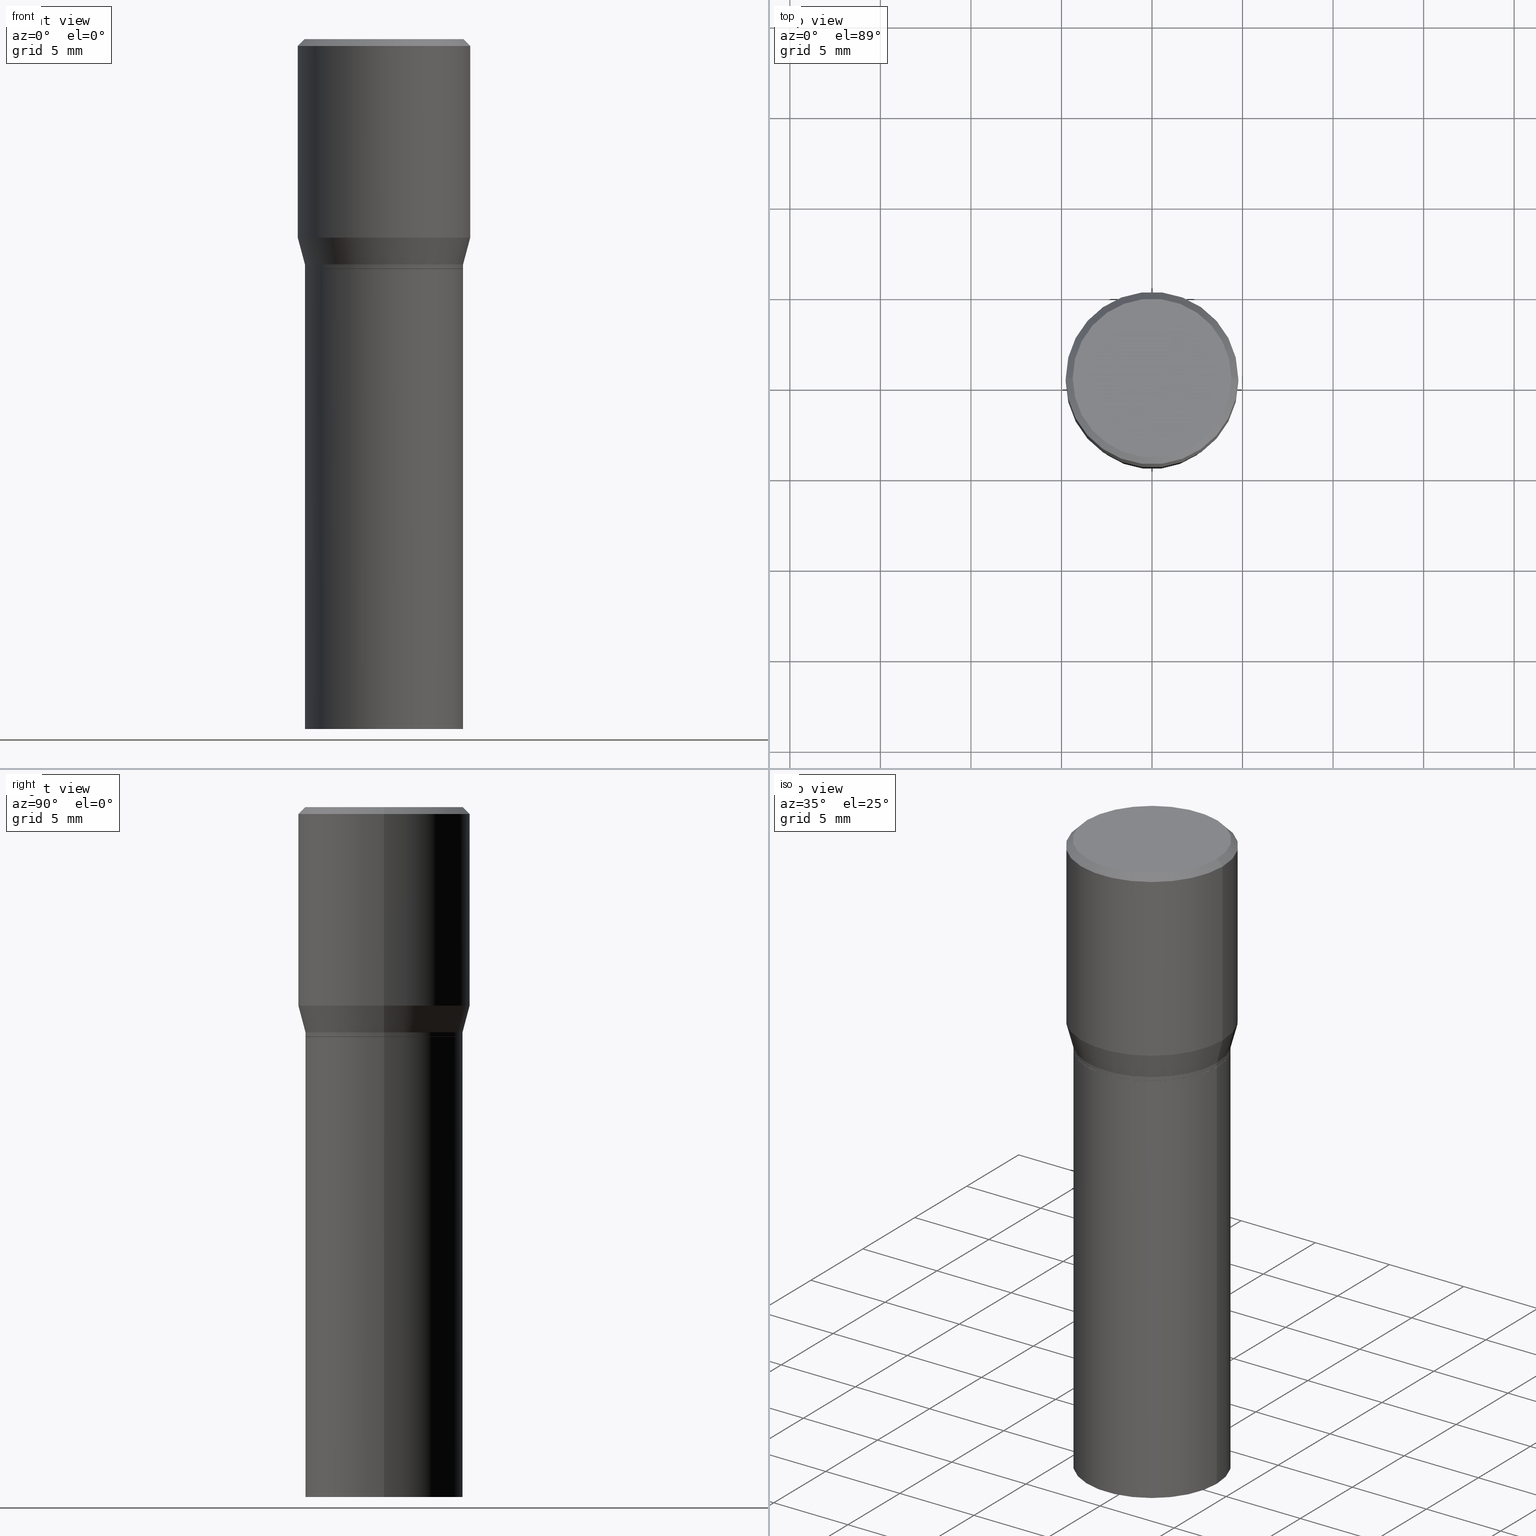
[diagram: canonical four-view strip — front | top / right | iso, engineering-drawing reading convention]
A machine part, canonical four-view strip (front | top / right | iso — engineering-drawing reading convention). The complete STEP part file that produces these views, byte-faithful:
ISO-10303-21;
HEADER;
FILE_DESCRIPTION (( 'STEP AP203' ),
    '1' );
FILE_NAME ('39743.STEP',
    '2024-03-12T19:06:54',
    ( '' ),
    ( '' ),
    'SwSTEP 2.0',
    'SolidWorks 2023',
    '' );
FILE_SCHEMA (( 'CONFIG_CONTROL_DESIGN' ));
ENDSEC;

DATA;
#1 = DIRECTION ( 'NONE',  ( 1.000000000000000000, -6.982962677686265922E-15, 0.000000000000000000 ) ) ;
#2 = ORIENTED_EDGE ( 'NONE', *, *, #230, .F. ) ;
#3 = EDGE_CURVE ( 'NONE', #219, #31, #153, .T. ) ;
#4 = PERSON_AND_ORGANIZATION ( #386, #197 ) ;
#5 = CARTESIAN_POINT ( 'NONE',  ( 1.222734403092568719E-29, -1.745740669421573186E-15, -0.5000000000000001110 ) ) ;
#6 = VECTOR ( 'NONE', #260, 39.37007874015748854 ) ;
#7 = DIRECTION ( 'NONE',  ( -2.445468806185136877E-29, 3.491481338843145188E-15, 1.000000000000000000 ) ) ;
#8 = DIRECTION ( 'NONE',  ( 1.000000000000000000, -6.982962677686266711E-15, 4.876176775795936353E-29 ) ) ;
#9 = ORIENTED_EDGE ( 'NONE', *, *, #288, .F. ) ;
#10 = EDGE_CURVE ( 'NONE', #149, #279, #114, .T. ) ;
#11 = LINE ( 'NONE', #328, #79 ) ;
#12 = ORIENTED_EDGE ( 'NONE', *, *, #303, .F. ) ;
#13 = PRODUCT_RELATED_PRODUCT_CATEGORY ( 'detail', '', ( #168 ) ) ;
#14 = AXIS2_PLACEMENT_3D ( 'NONE', #132, #463, #207 ) ;
#15 = DATE_AND_TIME ( #292, #127 ) ;
#16 = ORIENTED_EDGE ( 'NONE', *, *, #374, .F. ) ;
#17 = DIRECTION ( 'NONE',  ( 1.000000000000000000, -6.982962677686266711E-15, 0.000000000000000000 ) ) ;
#18 = CALENDAR_DATE ( 2024, 12, 3 ) ;
#19 = DIRECTION ( 'NONE',  ( -2.445468806185136877E-29, 3.491481338843145188E-15, 1.000000000000000000 ) ) ;
#20 = CALENDAR_DATE ( 2024, 12, 3 ) ;
#21 = VECTOR ( 'NONE', #302, 39.37007874015748143 ) ;
#22 = CARTESIAN_POINT ( 'NONE',  ( 0.000000000000000000, 0.000000000000000000, 0.000000000000000000 ) ) ;
#23 = LINE ( 'NONE', #340, #266 ) ;
#24 = MANIFOLD_SOLID_BREP ( 'Body-Move/Copy2[1]', #370 ) ;
#25 = CYLINDRICAL_SURFACE ( 'NONE', #136, 0.1718999999999999695 ) ;
#26 = CARTESIAN_POINT ( 'NONE',  ( 0.1875000000000000278, -1.309305502066175008E-15, 9.142831454617381013E-30 ) ) ;
#27 = CC_DESIGN_APPROVAL ( #91, ( #336 ) ) ;
#28 = EDGE_LOOP ( 'NONE', ( #97, #205, #448, #242 ) ) ;
#29 = ADVANCED_FACE ( 'NONE', ( #156 ), #195, .T. ) ;
#30 = DIRECTION ( 'NONE',  ( 1.000000000000000000, -6.982962677686266711E-15, 4.876912640186324808E-29 ) ) ;
#31 = VERTEX_POINT ( 'NONE', #187 ) ;
#32 = CC_DESIGN_PERSON_AND_ORGANIZATION_ASSIGNMENT ( #325, #289, ( #63 ) ) ;
#33 = CARTESIAN_POINT ( 'NONE',  ( 1.221511668689476057E-29, -1.743994928752151682E-15, -0.4995000000000001661 ) ) ;
#34 = ORIENTED_EDGE ( 'NONE', *, *, #277, .T. ) ;
#35 = DIRECTION ( 'NONE',  ( 1.000000000000000000, -6.982962677686265922E-15, 0.000000000000000000 ) ) ;
#36 = EDGE_LOOP ( 'NONE', ( #465, #358, #276, #402 ) ) ;
#37 = EDGE_CURVE ( 'NONE', #352, #407, #404, .T. ) ;
#38 = AXIS2_PLACEMENT_3D ( 'NONE', #232, #459, #351 ) ;
#39 = CARTESIAN_POINT ( 'NONE',  ( 0.1875000000000000278, -2.816857340395553661E-15, -0.4317800074019257361 ) ) ;
#40 = ORIENTED_EDGE ( 'NONE', *, *, #322, .F. ) ;
#41 = DIRECTION ( 'NONE',  ( 0.000000000000000000, 0.000000000000000000, 1.000000000000000000 ) ) ;
#42 = DIRECTION ( 'NONE',  ( 2.438088387897960049E-29, -3.491481338843145188E-15, -1.000000000000000000 ) ) ;
#43 = CYLINDRICAL_SURFACE ( 'NONE', #389, 0.1718999999999999695 ) ;
#44 =( NAMED_UNIT ( * ) PLANE_ANGLE_UNIT ( ) SI_UNIT ( $, .RADIAN. ) );
#45 = CARTESIAN_POINT ( 'NONE',  ( 1.222734403092568719E-29, -1.745740669421573186E-15, -0.5000000000000001110 ) ) ;
#46 = FACE_OUTER_BOUND ( 'NONE', #100, .T. ) ;
#47 = EDGE_LOOP ( 'NONE', ( #181, #433 ) ) ;
#48 = CALENDAR_DATE ( 2024, 12, 3 ) ;
#49 = ORIENTED_EDGE ( 'NONE', *, *, #37, .F. ) ;
#50 = AXIS2_PLACEMENT_3D ( 'NONE', #373, #198, #17 ) ;
#51 = DIRECTION ( 'NONE',  ( 2.445468806185136597E-29, -3.491481338843145583E-15, -1.000000000000000000 ) ) ;
#52 = ADVANCED_FACE ( 'NONE', ( #296 ), #410, .F. ) ;
#53 = DIRECTION ( 'NONE',  ( -2.438088387897960049E-29, 3.491481338843145188E-15, 1.000000000000000000 ) ) ;
#54 = DIRECTION ( 'NONE',  ( -2.445468806185136597E-29, 3.491481338843145583E-15, 1.000000000000000000 ) ) ;
#55 = AXIS2_PLACEMENT_3D ( 'NONE', #390, #60, #30 ) ;
#56 = CC_DESIGN_SECURITY_CLASSIFICATION ( #336, ( #72 ) ) ;
#57 = CARTESIAN_POINT ( 'NONE',  ( 0.1725000000000000144, -1.261075749640199308E-15, -2.636744989014362231E-17 ) ) ;
#58 = ADVANCED_FACE ( 'NONE', ( #364 ), #436, .T. ) ;
#59 = LINE ( 'NONE', #416, #6 ) ;
#60 = DIRECTION ( 'NONE',  ( -2.445468806185136597E-29, 3.491481338843145583E-15, 1.000000000000000000 ) ) ;
#61 = DIRECTION ( 'NONE',  ( -2.445468806185136597E-29, 3.491481338843145583E-15, 1.000000000000000000 ) ) ;
#62 = ORIENTED_EDGE ( 'NONE', *, *, #438, .T. ) ;
#63 = PRODUCT_DEFINITION ( 'UNKNOWN', '', #72, #82 ) ;
#64 = CARTESIAN_POINT ( 'NONE',  ( 1.055904539235796751E-29, -1.507551838329378850E-15, -0.4317800074019257361 ) ) ;
#65 = ORIENTED_EDGE ( 'NONE', *, *, #217, .T. ) ;
#66 = EDGE_CURVE ( 'NONE', #149, #442, #165, .T. ) ;
#67 = DIRECTION ( 'NONE',  ( 1.000000000000000000, -6.982962677686268288E-15, 0.000000000000000000 ) ) ;
#68 = ORIENTED_EDGE ( 'NONE', *, *, #366, .F. ) ;
#69 = PLANE ( 'NONE',  #335 ) ;
#70 = VECTOR ( 'NONE', #19, 39.37007874015748143 ) ;
#71 = VERTEX_POINT ( 'NONE', #250 ) ;
#72 = PRODUCT_DEFINITION_FORMATION_WITH_SPECIFIED_SOURCE ( 'ANY', '', #168, .NOT_KNOWN. ) ;
#73 =( LENGTH_UNIT ( ) NAMED_UNIT ( * ) SI_UNIT ( $, .METRE. ) );
#74 = ORIENTED_EDGE ( 'NONE', *, *, #464, .F. ) ;
#75 = CARTESIAN_POINT ( 'NONE',  ( 0.1713999999999999690, -2.942620472376999223E-15, -0.5000000000000001110 ) ) ;
#76 = CARTESIAN_POINT ( 'NONE',  ( 1.198279715030717173E-29, -1.710825856033141537E-15, -0.4900000000000001021 ) ) ;
#77 = CARTESIAN_POINT ( 'NONE',  ( 0.000000000000000000, 0.000000000000000000, 0.000000000000000000 ) ) ;
#78 = EDGE_LOOP ( 'NONE', ( #444, #331, #367, #9 ) ) ;
#79 = VECTOR ( 'NONE', #245, 39.37007874015748143 ) ;
#80 = DIRECTION ( 'NONE',  ( -1.000000000000000000, 6.982962677686265922E-15, 0.000000000000000000 ) ) ;
#81 = ORIENTED_EDGE ( 'NONE', *, *, #400, .F. ) ;
#82 = DESIGN_CONTEXT ( 'detailed design', #383, 'design' ) ;
#83 = CALENDAR_DATE ( 2024, 12, 3 ) ;
#84 = CARTESIAN_POINT ( 'NONE',  ( 1.055904539235796751E-29, -1.507551838329378850E-15, -0.4317800074019257361 ) ) ;
#85 = ADVANCED_FACE ( 'NONE', ( #361 ), #43, .T. ) ;
#86 = DIRECTION ( 'NONE',  ( 1.000000000000000000, -6.982962677686265922E-15, 4.876176775795935793E-29 ) ) ;
#87 = CIRCLE ( 'NONE', #145, 0.1718999999999999695 ) ;
#88 = DIRECTION ( 'NONE',  ( -2.438088387897960049E-29, 3.491481338843145188E-15, 1.000000000000000000 ) ) ;
#89 = CARTESIAN_POINT ( 'NONE',  ( 0.000000000000000000, 0.000000000000000000, 0.000000000000000000 ) ) ;
#90 = DIRECTION ( 'NONE',  ( 1.000000000000000000, -6.982962677686265922E-15, 4.876176775795935793E-29 ) ) ;
#91 = APPROVAL ( #222, 'UNSPECIFIED' ) ;
#92 = DATE_AND_TIME ( #20, #397 ) ;
#93 = AXIS2_PLACEMENT_3D ( 'NONE', #349, #392, #432 ) ;
#94 = CARTESIAN_POINT ( 'NONE',  ( 0.1718999999999999695, -2.946111953715842230E-15, -0.5000000000000001110 ) ) ;
#95 = DIRECTION ( 'NONE',  ( -2.445468806185136597E-29, 3.491481338843145583E-15, 1.000000000000000000 ) ) ;
#96 = DIRECTION ( 'NONE',  ( 1.000000000000000000, -6.982962677686268288E-15, 0.000000000000000000 ) ) ;
#97 = ORIENTED_EDGE ( 'NONE', *, *, #429, .F. ) ;
#98 = CARTESIAN_POINT ( 'NONE',  ( 1.200371284294281074E-15, 0.1718999999999982486, -0.5000000000000007772 ) ) ;
#99 = CONICAL_SURFACE ( 'NONE', #118, 0.1875000000000000278, 0.7853981633974495002 ) ;
#100 = EDGE_LOOP ( 'NONE', ( #314, #270, #34, #431 ) ) ;
#101 = DIRECTION ( 'NONE',  ( 1.000000000000000000, -6.982962677686266711E-15, 0.000000000000000000 ) ) ;
#102 = ORIENTED_EDGE ( 'NONE', *, *, #3, .F. ) ;
#103 = FACE_OUTER_BOUND ( 'NONE', #460, .T. ) ;
#104 = PERSON_AND_ORGANIZATION_ROLE ( 'creator' ) ;
#105 = CIRCLE ( 'NONE', #274, 0.1725000000000000144 ) ;
#106 = APPROVAL_PERSON_ORGANIZATION ( #446, #291, #257 ) ;
#107 = DIRECTION ( 'NONE',  ( -2.445468806185136597E-29, 3.491481338843145583E-15, 1.000000000000000000 ) ) ;
#108 = CARTESIAN_POINT ( 'NONE',  ( -0.1718999999999999695, -2.270058376071533777E-15, -0.5000000000000001110 ) ) ;
#109 = CC_DESIGN_PERSON_AND_ORGANIZATION_ASSIGNMENT ( #4, #406, ( #168 ) ) ;
#110 = APPROVAL_DATE_TIME ( #330, #362 ) ;
#111 = EDGE_LOOP ( 'NONE', ( #290, #399, #409, #435 ) ) ;
#112 = CIRCLE ( 'NONE', #55, 0.1725000000000000144 ) ;
#113 = APPROVAL_STATUS ( 'not_yet_approved' ) ;
#114 = LINE ( 'NONE', #294, #332 ) ;
#115 = VERTEX_POINT ( 'NONE', #108 ) ;
#116 = ADVANCED_FACE ( 'NONE', ( #329 ), #128, .T. ) ;
#117 = CARTESIAN_POINT ( 'NONE',  ( 3.576687321579069994E-29, -5.368277968210015545E-15, -1.500000000000000222 ) ) ;
#118 = AXIS2_PLACEMENT_3D ( 'NONE', #420, #51, #268 ) ;
#119 = COORDINATED_UNIVERSAL_TIME_OFFSET ( 5, 0, .BEHIND. ) ;
#120 = DIRECTION ( 'NONE',  ( 1.000000000000000000, -6.982962677686266711E-15, 4.876912640186324808E-29 ) ) ;
#121 = DIRECTION ( 'NONE',  ( -2.445468806185136597E-29, 3.491481338843145583E-15, 1.000000000000000000 ) ) ;
#122 = CC_DESIGN_PERSON_AND_ORGANIZATION_ASSIGNMENT ( #155, #371, ( #336 ) ) ;
#123 = DATE_TIME_ROLE ( 'classification_date' ) ;
#124 = FACE_OUTER_BOUND ( 'NONE', #287, .T. ) ;
#125 = VECTOR ( 'NONE', #357, 39.37007874015748143 ) ;
#126 = ADVANCED_FACE ( 'NONE', ( #261 ), #223, .F. ) ;
#127 = LOCAL_TIME ( 15, 6, 54.00000000000000000, #253 ) ;
#128 = CYLINDRICAL_SURFACE ( 'NONE', #421, 0.1718999999999999695 ) ;
#129 = DIRECTION ( 'NONE',  ( -2.445468806185136597E-29, 3.491481338843145583E-15, 1.000000000000000000 ) ) ;
#130 = VERTEX_POINT ( 'NONE', #382 ) ;
#131 = PRODUCT_DEFINITION_SHAPE ( 'NONE', 'NONE',  #63 ) ;
#132 = CARTESIAN_POINT ( 'NONE',  ( 3.668203209277705088E-31, -5.237222008264718399E-17, -0.01499999999999999944 ) ) ;
#133 = ORIENTED_EDGE ( 'NONE', *, *, #288, .T. ) ;
#134 = CLOSED_SHELL ( 'NONE', ( #206, #58, #458, #212, #29, #348, #297, #173, #52, #152, #252, #85 ) ) ;
#135 = CARTESIAN_POINT ( 'NONE',  ( 3.668203209277705088E-31, -5.237222008264718399E-17, -0.01499999999999999944 ) ) ;
#136 = AXIS2_PLACEMENT_3D ( 'NONE', #89, #265, #226 ) ;
#137 = AXIS2_PLACEMENT_3D ( 'NONE', #77, #41, #180 ) ;
#138 = VERTEX_POINT ( 'NONE', #159 ) ;
#139 = CARTESIAN_POINT ( 'NONE',  ( -0.1718999999999999695, -5.225719659805397780E-16, -0.4995000000000001661 ) ) ;
#140 = ORIENTED_EDGE ( 'NONE', *, *, #217, .F. ) ;
#141 = EDGE_CURVE ( 'NONE', #442, #71, #59, .T. ) ;
#142 = FACE_OUTER_BOUND ( 'NONE', #215, .T. ) ;
#143 = ORIENTED_EDGE ( 'NONE', *, *, #413, .T. ) ;
#144 = PERSON_AND_ORGANIZATION ( #386, #197 ) ;
#145 = AXIS2_PLACEMENT_3D ( 'NONE', #315, #129, #67 ) ;
#146 = DIRECTION ( 'NONE',  ( -2.445468806185136597E-29, 3.491481338843145583E-15, 1.000000000000000000 ) ) ;
#147 = EDGE_CURVE ( 'NONE', #130, #203, #412, .T. ) ;
#148 = CARTESIAN_POINT ( 'NONE',  ( 3.668203209277705088E-31, -5.237222008264718399E-17, -0.01499999999999999944 ) ) ;
#149 = VERTEX_POINT ( 'NONE', #199 ) ;
#150 = APPROVAL_STATUS ( 'not_yet_approved' ) ;
#151 = EDGE_LOOP ( 'NONE', ( #16, #281 ) ) ;
#152 = ADVANCED_FACE ( 'NONE', ( #305 ), #344, .F. ) ;
#153 = LINE ( 'NONE', #188, #419 ) ;
#154 = CONICAL_SURFACE ( 'NONE', #308, 0.1713999999999999690, 0.7853981633974824739 ) ;
#155 = PERSON_AND_ORGANIZATION ( #386, #197 ) ;
#156 = FACE_OUTER_BOUND ( 'NONE', #236, .T. ) ;
#157 = UNCERTAINTY_MEASURE_WITH_UNIT (LENGTH_MEASURE( 1.000000000000000082E-05 ), #443, 'distance_accuracy_value', 'NONE');
#158 = CARTESIAN_POINT ( 'NONE',  ( 0.1718999999999999695, -2.911197140327410581E-15, -0.4900000000000001021 ) ) ;
#159 = CARTESIAN_POINT ( 'NONE',  ( 0.1718999999999999695, -6.437593292558987418E-15, -1.500000000000000222 ) ) ;
#160 = CIRCLE ( 'NONE', #428, 0.1718999999999999695 ) ;
#161 = CC_DESIGN_APPROVAL ( #291, ( #72 ) ) ;
#162 = FACE_OUTER_BOUND ( 'NONE', #395, .T. ) ;
#163 = CARTESIAN_POINT ( 'NONE',  ( 1.222734403092568719E-29, -1.745740669421573186E-15, -0.5000000000000001110 ) ) ;
#164 = CARTESIAN_POINT ( 'NONE',  ( -0.1718999999999999695, -4.894028932615295339E-16, -0.4900000000000001021 ) ) ;
#165 = CIRCLE ( 'NONE', #341, 0.1713999999999999690 ) ;
#166 = VECTOR ( 'NONE', #7, 39.37007874015748143 ) ;
#167 = DIRECTION ( 'NONE',  ( -2.445468806185136597E-29, 3.491481338843145583E-15, 1.000000000000000000 ) ) ;
#168 = PRODUCT ( '39743', '39743', '', ( #365 ) ) ;
#169 = VERTEX_POINT ( 'NONE', #158 ) ;
#170 = CARTESIAN_POINT ( 'NONE',  ( 1.222734403092568719E-29, -1.745740669421573186E-15, -0.5000000000000001110 ) ) ;
#171 = ORIENTED_EDGE ( 'NONE', *, *, #366, .T. ) ;
#172 = CARTESIAN_POINT ( 'NONE',  ( -0.1875000000000000278, 1.332267629550188046E-15, -9.223003294227947991E-30 ) ) ;
#173 = ADVANCED_FACE ( 'NONE', ( #162 ), #99, .T. ) ;
#174 = DIRECTION ( 'NONE',  ( -1.000000000000000000, 6.982962677686265922E-15, -4.876176775795935793E-29 ) ) ;
#175 = CIRCLE ( 'NONE', #363, 0.1718999999999999695 ) ;
#176 = CC_DESIGN_DATE_AND_TIME_ASSIGNMENT ( #450, #123, ( #336 ) ) ;
#177 = ORIENTED_EDGE ( 'NONE', *, *, #295, .T. ) ;
#178 = DIRECTION ( 'NONE',  ( 1.000000000000000000, -6.982962677686266711E-15, 0.000000000000000000 ) ) ;
#179 = EDGE_LOOP ( 'NONE', ( #81, #216 ) ) ;
#180 = DIRECTION ( 'NONE',  ( 1.000000000000000000, 0.000000000000000000, 0.000000000000000000 ) ) ;
#181 = ORIENTED_EDGE ( 'NONE', *, *, #272, .T. ) ;
#182 = APPLICATION_PROTOCOL_DEFINITION ( 'international standard', 'config_control_design', 1994, #383 ) ;
#183 = CIRCLE ( 'NONE', #14, 0.1875000000000000278 ) ;
#184 = CARTESIAN_POINT ( 'NONE',  ( 0.000000000000000000, 0.000000000000000000, 0.000000000000000000 ) ) ;
#185 = APPROVAL_PERSON_ORGANIZATION ( #144, #362, #284 ) ;
#186 = DIRECTION ( 'NONE',  ( 1.000000000000000000, -6.982962677686266711E-15, 0.000000000000000000 ) ) ;
#187 = CARTESIAN_POINT ( 'NONE',  ( 0.1875000000000000278, -1.361677722148822285E-15, -0.01499999999999999944 ) ) ;
#188 = CARTESIAN_POINT ( 'NONE',  ( 0.1875000000000000278, -1.338715594664809642E-15, -0.01499999999999999944 ) ) ;
#189 = AXIS2_PLACEMENT_3D ( 'NONE', #76, #213, #285 ) ;
#190 = AXIS2_PLACEMENT_3D ( 'NONE', #64, #61, #1 ) ;
#191 = DIRECTION ( 'NONE',  ( 1.000000000000000000, -6.982962677686265922E-15, 4.876176775795935793E-29 ) ) ;
#192 = PERSON_AND_ORGANIZATION ( #386, #197 ) ;
#193 = FACE_OUTER_BOUND ( 'NONE', #346, .T. ) ;
#194 = CARTESIAN_POINT ( 'NONE',  ( 0.1718999999999999695, -1.200371284294269044E-15, 8.382147877593213079E-30 ) ) ;
#195 = CONICAL_SURFACE ( 'NONE', #189, 0.1718999999999999695, 0.2617993877991502960 ) ;
#196 = AXIS2_PLACEMENT_3D ( 'NONE', #135, #353, #35 ) ;
#197 = ORGANIZATION ( 'UNSPECIFIED', 'UNSPECIFIED', '' ) ;
#198 = DIRECTION ( 'NONE',  ( -2.445468806185136597E-29, 3.491481338843145583E-15, 1.000000000000000000 ) ) ;
#199 = CARTESIAN_POINT ( 'NONE',  ( -0.1713999999999999690, -5.252211931546505847E-16, -0.5000000000000001110 ) ) ;
#200 = CARTESIAN_POINT ( 'NONE',  ( 0.000000000000000000, 0.000000000000000000, 0.000000000000000000 ) ) ;
#201 = AXIS2_PLACEMENT_3D ( 'NONE', #339, #338, #86 ) ;
#202 = LINE ( 'NONE', #461, #166 ) ;
#203 = VERTEX_POINT ( 'NONE', #378 ) ;
#204 = DIRECTION ( 'NONE',  ( 2.438088387897960049E-29, -3.491481338843145188E-15, -1.000000000000000000 ) ) ;
#205 = ORIENTED_EDGE ( 'NONE', *, *, #417, .T. ) ;
#206 = ADVANCED_FACE ( 'NONE', ( #193 ), #25, .T. ) ;
#207 = DIRECTION ( 'NONE',  ( 1.000000000000000000, -6.982962677686265922E-15, 0.000000000000000000 ) ) ;
#208 = CIRCLE ( 'NONE', #405, 0.1718999999999999695 ) ;
#209 = CYLINDRICAL_SURFACE ( 'NONE', #93, 0.1718999999999999695 ) ;
#210 = VERTEX_POINT ( 'NONE', #94 ) ;
#211 = CARTESIAN_POINT ( 'NONE',  ( 1.204561061900881047E-15, 0.1725000000000000144, -6.154642558955188135E-16 ) ) ;
#212 = ADVANCED_FACE ( 'NONE', ( #124 ), #453, .T. ) ;
#213 = DIRECTION ( 'NONE',  ( -2.445468806185136597E-29, 3.491481338843145583E-15, 1.000000000000000000 ) ) ;
#214 = DIRECTION ( 'NONE',  ( 1.000000000000000000, -6.982962677686265922E-15, 0.000000000000000000 ) ) ;
#215 = EDGE_LOOP ( 'NONE', ( #354, #177, #350, #49 ) ) ;
#216 = ORIENTED_EDGE ( 'NONE', *, *, #417, .F. ) ;
#217 = EDGE_CURVE ( 'NONE', #169, #425, #208, .T. ) ;
#218 = DATE_AND_TIME ( #83, #457 ) ;
#219 = VERTEX_POINT ( 'NONE', #57 ) ;
#220 = CARTESIAN_POINT ( 'NONE',  ( 1.222734403092568719E-29, -1.745740669421573186E-15, -0.5000000000000001110 ) ) ;
#221 = VECTOR ( 'NONE', #343, 39.37007874015748143 ) ;
#222 = APPROVAL_STATUS ( 'not_yet_approved' ) ;
#223 = PLANE ( 'NONE',  #411 ) ;
#224 = SECURITY_CLASSIFICATION_LEVEL ( 'unclassified' ) ;
#225 = DIRECTION ( 'NONE',  ( -2.445468806185136877E-29, 3.491481338843145188E-15, 1.000000000000000000 ) ) ;
#226 = DIRECTION ( 'NONE',  ( 1.000000000000000000, -6.982962677686266711E-15, 4.876176775795936353E-29 ) ) ;
#227 = AXIS2_PLACEMENT_3D ( 'NONE', #466, #95, #101 ) ;
#228 = LOCAL_TIME ( 15, 6, 54.00000000000000000, #401 ) ;
#229 = CARTESIAN_POINT ( 'NONE',  ( 1.198279715030717173E-29, -1.710825856033141537E-15, -0.4900000000000001021 ) ) ;
#230 = EDGE_CURVE ( 'NONE', #71, #169, #23, .T. ) ;
#231 = DIRECTION ( 'NONE',  ( 1.000000000000000000, -6.982962677686265922E-15, 0.000000000000000000 ) ) ;
#232 = CARTESIAN_POINT ( 'NONE',  ( 1.222734403092568719E-29, -1.745740669421573186E-15, -0.5000000000000001110 ) ) ;
#233 = ORIENTED_EDGE ( 'NONE', *, *, #464, .T. ) ;
#234 = AXIS2_PLACEMENT_3D ( 'NONE', #200, #167, #423 ) ;
#235 = CARTESIAN_POINT ( 'NONE',  ( 1.198279715030717173E-29, -1.710825856033141537E-15, -0.4900000000000001021 ) ) ;
#236 = EDGE_LOOP ( 'NONE', ( #65, #388, #40, #447 ) ) ;
#237 = EDGE_CURVE ( 'NONE', #425, #352, #455, .T. ) ;
#238 = DIRECTION ( 'NONE',  ( -2.445468806185136877E-29, 3.491481338843145188E-15, 1.000000000000000000 ) ) ;
#239 = ORIENTED_EDGE ( 'NONE', *, *, #295, .F. ) ;
#240 = EDGE_CURVE ( 'NONE', #138, #210, #451, .T. ) ;
#241 = DIRECTION ( 'NONE',  ( -2.445468806185136597E-29, 3.491481338843145583E-15, 1.000000000000000000 ) ) ;
#242 = ORIENTED_EDGE ( 'NONE', *, *, #413, .F. ) ;
#243 = AXIS2_PLACEMENT_3D ( 'NONE', #211, #42, #323 ) ;
#244 = CIRCLE ( 'NONE', #372, 0.1718999999999999695 ) ;
#245 = DIRECTION ( 'NONE',  ( -2.445468806185136877E-29, 3.491481338843145188E-15, 1.000000000000000000 ) ) ;
#246 = APPROVAL_PERSON_ORGANIZATION ( #192, #91, #299 ) ;
#247 = ORIENTED_EDGE ( 'NONE', *, *, #10, .F. ) ;
#248 = APPLICATION_CONTEXT ( 'configuration controlled 3d designs of mechanical parts and assemblies' ) ;
#249 = DIRECTION ( 'NONE',  ( 2.445468806185136597E-29, -3.491481338843145583E-15, -1.000000000000000000 ) ) ;
#250 = CARTESIAN_POINT ( 'NONE',  ( 0.1718999999999999695, -2.944366213046420332E-15, -0.4995000000000001661 ) ) ;
#251 = DIRECTION ( 'NONE',  ( -2.445468806185136597E-29, 3.491481338843145583E-15, 1.000000000000000000 ) ) ;
#252 = ADVANCED_FACE ( 'NONE', ( #307 ), #154, .T. ) ;
#253 = COORDINATED_UNIVERSAL_TIME_OFFSET ( 5, 0, .BEHIND. ) ;
#254 = AXIS2_PLACEMENT_3D ( 'NONE', #5, #146, #440 ) ;
#255 = ORIENTED_EDGE ( 'NONE', *, *, #66, .T. ) ;
#256 = CONICAL_SURFACE ( 'NONE', #422, 0.1875000000000000278, 0.7853981633974495002 ) ;
#257 = APPROVAL_ROLE ( '' ) ;
#258 = DIRECTION ( 'NONE',  ( -0.7071067811865715536, 7.493145998870439357E-15, 0.7071067811865232589 ) ) ;
#259 = ORIENTED_EDGE ( 'NONE', *, *, #147, .T. ) ;
#260 = DIRECTION ( 'NONE',  ( 0.7071067811865715536, -2.468850131082509496E-15, 0.7071067811865232589 ) ) ;
#261 = FACE_OUTER_BOUND ( 'NONE', #179, .T. ) ;
#262 = EDGE_CURVE ( 'NONE', #210, #115, #324, .T. ) ;
#263 = DIRECTION ( 'NONE',  ( 1.000000000000000000, -6.982962677686266711E-15, 0.000000000000000000 ) ) ;
#264 = SHAPE_DEFINITION_REPRESENTATION ( #131, #403 ) ;
#265 = DIRECTION ( 'NONE',  ( -2.445468806185136597E-29, 3.491481338843145583E-15, 1.000000000000000000 ) ) ;
#266 = VECTOR ( 'NONE', #225, 39.37007874015748143 ) ;
#267 = LOCAL_TIME ( 15, 6, 54.00000000000000000, #119 ) ;
#268 = DIRECTION ( 'NONE',  ( -1.000000000000000000, 6.982962677686265922E-15, 0.000000000000000000 ) ) ;
#269 = DIRECTION ( 'NONE',  ( -2.445468806185136597E-29, 3.491481338843145583E-15, 1.000000000000000000 ) ) ;
#270 = ORIENTED_EDGE ( 'NONE', *, *, #3, .T. ) ;
#271 = LINE ( 'NONE', #26, #293 ) ;
#272 = EDGE_CURVE ( 'NONE', #130, #219, #105, .T. ) ;
#273 = VERTEX_POINT ( 'NONE', #414 ) ;
#274 = AXIS2_PLACEMENT_3D ( 'NONE', #298, #449, #120 ) ;
#275 = CYLINDRICAL_SURFACE ( 'NONE', #234, 0.1875000000000000278 ) ;
#276 = ORIENTED_EDGE ( 'NONE', *, *, #438, .F. ) ;
#277 = EDGE_CURVE ( 'NONE', #31, #203, #183, .T. ) ;
#278 = FACE_OUTER_BOUND ( 'NONE', #28, .T. ) ;
#279 = VERTEX_POINT ( 'NONE', #139 ) ;
#280 = APPROVAL_DATE_TIME ( #218, #291 ) ;
#281 = ORIENTED_EDGE ( 'NONE', *, *, #66, .F. ) ;
#282 = EDGE_CURVE ( 'NONE', #219, #130, #112, .T. ) ;
#283 = VECTOR ( 'NONE', #238, 39.37007874015748143 ) ;
#284 = APPROVAL_ROLE ( '' ) ;
#285 = DIRECTION ( 'NONE',  ( 1.000000000000000000, -6.982962677686266711E-15, 0.000000000000000000 ) ) ;
#286 = CARTESIAN_POINT ( 'NONE',  ( 1.221511668689476057E-29, -1.743994928752151682E-15, -0.4995000000000001661 ) ) ;
#287 = EDGE_LOOP ( 'NONE', ( #319, #321, #369, #12 ) ) ;
#288 = EDGE_CURVE ( 'NONE', #203, #31, #347, .T. ) ;
#289 = PERSON_AND_ORGANIZATION_ROLE ( 'creator' ) ;
#290 = ORIENTED_EDGE ( 'NONE', *, *, #400, .T. ) ;
#291 = APPROVAL ( #113, 'UNSPECIFIED' ) ;
#292 = CALENDAR_DATE ( 2024, 12, 3 ) ;
#293 = VECTOR ( 'NONE', #384, 39.37007874015748143 ) ;
#294 = CARTESIAN_POINT ( 'NONE',  ( -0.1713999999999999690, -5.278704203287616871E-16, -0.5000000000000001110 ) ) ;
#295 = EDGE_CURVE ( 'NONE', #425, #169, #317, .T. ) ;
#296 = FACE_OUTER_BOUND ( 'NONE', #47, .T. ) ;
#297 = ADVANCED_FACE ( 'NONE', ( #345 ), #275, .T. ) ;
#298 = CARTESIAN_POINT ( 'NONE',  ( 6.448077620501702025E-46, -9.206145924434830208E-32, -2.636744989015224123E-17 ) ) ;
#299 = APPROVAL_ROLE ( '' ) ;
#300 = DIRECTION ( 'NONE',  ( -2.445468806185136597E-29, 3.491481338843145583E-15, 1.000000000000000000 ) ) ;
#301 = APPROVAL_DATE_TIME ( #92, #91 ) ;
#302 = DIRECTION ( 'NONE',  ( -0.2588190451025216277, 5.211531920934551831E-15, 0.9659258262890679791 ) ) ;
#303 = EDGE_CURVE ( 'NONE', #407, #31, #271, .T. ) ;
#304 = PERSON_AND_ORGANIZATION ( #386, #197 ) ;
#305 = FACE_OUTER_BOUND ( 'NONE', #151, .T. ) ;
#306 = ADVANCED_FACE ( 'NONE', ( #103 ), #69, .F. ) ;
#307 = FACE_OUTER_BOUND ( 'NONE', #391, .T. ) ;
#308 = AXIS2_PLACEMENT_3D ( 'NONE', #220, #54, #452 ) ;
#309 = CC_DESIGN_APPROVAL ( #362, ( #63 ) ) ;
#310 = LINE ( 'NONE', #318, #125 ) ;
#311 = EDGE_LOOP ( 'NONE', ( #74, #171, #393, #239 ) ) ;
#312 = EDGE_CURVE ( 'NONE', #169, #407, #310, .T. ) ;
#313 = CARTESIAN_POINT ( 'NONE',  ( -0.1875000000000000278, -1.752842087791908777E-16, -0.4317800074019257361 ) ) ;
#314 = ORIENTED_EDGE ( 'NONE', *, *, #282, .F. ) ;
#315 = CARTESIAN_POINT ( 'NONE',  ( 3.668203209277704895E-29, -5.237222008264718177E-15, -1.500000000000000222 ) ) ;
#316 = ORIENTED_EDGE ( 'NONE', *, *, #272, .F. ) ;
#317 = CIRCLE ( 'NONE', #437, 0.1718999999999999695 ) ;
#318 = CARTESIAN_POINT ( 'NONE',  ( 0.1718999999999999695, -2.911197140327410581E-15, -0.4900000000000001021 ) ) ;
#319 = ORIENTED_EDGE ( 'NONE', *, *, #322, .T. ) ;
#320 = CARTESIAN_POINT ( 'NONE',  ( 3.668203209277704895E-29, -5.237222008264718177E-15, -1.500000000000000222 ) ) ;
#321 = ORIENTED_EDGE ( 'NONE', *, *, #376, .T. ) ;
#322 = EDGE_CURVE ( 'NONE', #407, #352, #396, .T. ) ;
#323 = DIRECTION ( 'NONE',  ( -1.000000000000000000, 6.982962677686265922E-15, -4.876176775795935793E-29 ) ) ;
#324 = CIRCLE ( 'NONE', #50, 0.1718999999999999695 ) ;
#325 = PERSON_AND_ORGANIZATION ( #386, #197 ) ;
#326 = DIRECTION ( 'NONE',  ( -2.445468806185136597E-29, 3.491481338843145583E-15, 1.000000000000000000 ) ) ;
#327 = CC_DESIGN_PERSON_AND_ORGANIZATION_ASSIGNMENT ( #434, #104, ( #72 ) ) ;
#328 = CARTESIAN_POINT ( 'NONE',  ( -0.1718999999999999695, 1.221422962771612003E-15, -8.455649420148183180E-30 ) ) ;
#329 = FACE_OUTER_BOUND ( 'NONE', #111, .T. ) ;
#330 = DATE_AND_TIME ( #48, #228 ) ;
#331 = ORIENTED_EDGE ( 'NONE', *, *, #37, .T. ) ;
#332 = VECTOR ( 'NONE', #258, 39.37007874015748854 ) ;
#333 = MANIFOLD_SOLID_BREP ( 'Body-Move/Copy2[2]', #134 ) ;
#334 = DIRECTION ( 'NONE',  ( -2.445468806185136597E-29, 3.491481338843145583E-15, 1.000000000000000000 ) ) ;
#335 = AXIS2_PLACEMENT_3D ( 'NONE', #98, #204, #174 ) ;
#336 = SECURITY_CLASSIFICATION ( '', '', #224 ) ;
#337 = DIRECTION ( 'NONE',  ( 0.7071067811865483499, -7.319954787623257623E-15, -0.7071067811865466846 ) ) ;
#338 = DIRECTION ( 'NONE',  ( -2.445468806185136597E-29, 3.491481338843145583E-15, 1.000000000000000000 ) ) ;
#339 = CARTESIAN_POINT ( 'NONE',  ( 0.000000000000000000, 0.000000000000000000, 0.000000000000000000 ) ) ;
#340 = CARTESIAN_POINT ( 'NONE',  ( 0.1718999999999999695, -1.200371284294269044E-15, 8.382147877593213079E-30 ) ) ;
#341 = AXIS2_PLACEMENT_3D ( 'NONE', #45, #107, #186 ) ;
#342 =( GEOMETRIC_REPRESENTATION_CONTEXT ( 3 ) GLOBAL_UNCERTAINTY_ASSIGNED_CONTEXT ( ( #157 ) ) GLOBAL_UNIT_ASSIGNED_CONTEXT ( ( #443, #44, #368 ) ) REPRESENTATION_CONTEXT ( 'NONE', 'WORKASPACE' ) );
#343 = DIRECTION ( 'NONE',  ( -0.7071067811865483499, 2.468850131082265738E-15, -0.7071067811865466846 ) ) ;
#344 = PLANE ( 'NONE',  #355 ) ;
#345 = FACE_OUTER_BOUND ( 'NONE', #78, .T. ) ;
#346 = EDGE_LOOP ( 'NONE', ( #62, #233, #140, #2 ) ) ;
#347 = CIRCLE ( 'NONE', #196, 0.1875000000000000278 ) ;
#348 = ADVANCED_FACE ( 'NONE', ( #142 ), #381, .T. ) ;
#349 = CARTESIAN_POINT ( 'NONE',  ( 0.000000000000000000, 0.000000000000000000, 0.000000000000000000 ) ) ;
#350 = ORIENTED_EDGE ( 'NONE', *, *, #312, .T. ) ;
#351 = DIRECTION ( 'NONE',  ( 1.000000000000000000, -6.982962677686266711E-15, 0.000000000000000000 ) ) ;
#352 = VERTEX_POINT ( 'NONE', #313 ) ;
#353 = DIRECTION ( 'NONE',  ( -2.445468806185136597E-29, 3.491481338843145583E-15, 1.000000000000000000 ) ) ;
#354 = ORIENTED_EDGE ( 'NONE', *, *, #237, .F. ) ;
#355 = AXIS2_PLACEMENT_3D ( 'NONE', #163, #53, #191 ) ;
#356 = AXIS2_PLACEMENT_3D ( 'NONE', #170, #241, #394 ) ;
#357 = DIRECTION ( 'NONE',  ( 0.2588190451025216277, 1.565188264969619995E-15, 0.9659258262890679791 ) ) ;
#358 = ORIENTED_EDGE ( 'NONE', *, *, #10, .T. ) ;
#359 = DIMENSIONAL_EXPONENTS ( 1.000000000000000000, 0.000000000000000000, 0.000000000000000000, 0.000000000000000000, 0.000000000000000000, 0.000000000000000000, 0.000000000000000000 ) ;
#360 = DIRECTION ( 'NONE',  ( 1.000000000000000000, -6.982962677686265922E-15, 0.000000000000000000 ) ) ;
#361 = FACE_OUTER_BOUND ( 'NONE', #311, .T. ) ;
#362 = APPROVAL ( #150, 'UNSPECIFIED' ) ;
#363 = AXIS2_PLACEMENT_3D ( 'NONE', #33, #424, #231 ) ;
#364 = FACE_OUTER_BOUND ( 'NONE', #36, .T. ) ;
#365 = MECHANICAL_CONTEXT ( 'NONE', #248, 'mechanical' ) ;
#366 = EDGE_CURVE ( 'NONE', #279, #71, #175, .T. ) ;
#367 = ORIENTED_EDGE ( 'NONE', *, *, #303, .T. ) ;
#368 =( NAMED_UNIT ( * ) SI_UNIT ( $, .STERADIAN. ) SOLID_ANGLE_UNIT ( ) );
#369 = ORIENTED_EDGE ( 'NONE', *, *, #277, .F. ) ;
#370 = CLOSED_SHELL ( 'NONE', ( #116, #126, #385, #306 ) ) ;
#371 = PERSON_AND_ORGANIZATION_ROLE ( 'classification_officer' ) ;
#372 = AXIS2_PLACEMENT_3D ( 'NONE', #320, #269, #96 ) ;
#373 = CARTESIAN_POINT ( 'NONE',  ( 1.222734403092568719E-29, -1.745740669421573186E-15, -0.5000000000000001110 ) ) ;
#374 = EDGE_CURVE ( 'NONE', #442, #149, #445, .T. ) ;
#375 = CARTESIAN_POINT ( 'NONE',  ( -0.1875000000000000278, 1.256933281983527732E-15, -0.01499999999999999944 ) ) ;
#376 = EDGE_CURVE ( 'NONE', #352, #203, #426, .T. ) ;
#377 = COORDINATED_UNIVERSAL_TIME_OFFSET ( 5, 0, .BEHIND. ) ;
#378 = CARTESIAN_POINT ( 'NONE',  ( -0.1875000000000000278, 5.523056003441748841E-16, -0.01499999999999999944 ) ) ;
#379 = CC_DESIGN_PERSON_AND_ORGANIZATION_ASSIGNMENT ( #304, #418, ( #72 ) ) ;
#380 = DIRECTION ( 'NONE',  ( 1.000000000000000000, -6.982962677686266711E-15, 4.876176775795936353E-29 ) ) ;
#381 = CONICAL_SURFACE ( 'NONE', #227, 0.1718999999999999695, 0.2617993877991502960 ) ;
#382 = CARTESIAN_POINT ( 'NONE',  ( -0.1725000000000000144, 1.230747171942204192E-15, -2.636744989016075847E-17 ) ) ;
#383 = APPLICATION_CONTEXT ( 'configuration controlled 3d designs of mechanical parts and assemblies' ) ;
#384 = DIRECTION ( 'NONE',  ( -2.445468806185136877E-29, 3.491481338843145188E-15, 1.000000000000000000 ) ) ;
#385 = ADVANCED_FACE ( 'NONE', ( #278 ), #209, .T. ) ;
#386 = PERSON ( 'UNSPECIFIED', 'UNSPECIFIED', 'UNSPECIFIED', ('UNSPECIFIED'), ('UNSPECIFIED'), ('UNSPECIFIED') ) ;
#387 = CARTESIAN_POINT ( 'NONE',  ( -0.1718999999999999695, -3.323435510203601689E-16, -0.4900000000000001021 ) ) ;
#388 = ORIENTED_EDGE ( 'NONE', *, *, #237, .T. ) ;
#389 = AXIS2_PLACEMENT_3D ( 'NONE', #184, #326, #8 ) ;
#390 = CARTESIAN_POINT ( 'NONE',  ( 6.448077620501702025E-46, -9.206145924434830208E-32, -2.636744989015224123E-17 ) ) ;
#391 = EDGE_LOOP ( 'NONE', ( #247, #255, #462, #68 ) ) ;
#392 = DIRECTION ( 'NONE',  ( -2.445468806185136597E-29, 3.491481338843145583E-15, 1.000000000000000000 ) ) ;
#393 = ORIENTED_EDGE ( 'NONE', *, *, #230, .T. ) ;
#394 = DIRECTION ( 'NONE',  ( 1.000000000000000000, -6.982962677686266711E-15, 0.000000000000000000 ) ) ;
#395 = EDGE_LOOP ( 'NONE', ( #102, #316, #259, #133 ) ) ;
#396 = CIRCLE ( 'NONE', #190, 0.1875000000000000278 ) ;
#397 = LOCAL_TIME ( 15, 6, 54.00000000000000000, #377 ) ;
#398 = DATE_TIME_ROLE ( 'creation_date' ) ;
#399 = ORIENTED_EDGE ( 'NONE', *, *, #429, .T. ) ;
#400 = EDGE_CURVE ( 'NONE', #138, #273, #87, .T. ) ;
#401 = COORDINATED_UNIVERSAL_TIME_OFFSET ( 5, 0, .BEHIND. ) ;
#402 = ORIENTED_EDGE ( 'NONE', *, *, #141, .F. ) ;
#403 = ADVANCED_BREP_SHAPE_REPRESENTATION ( '39743', ( #24, #333, #137 ), #342 ) ;
#404 = CIRCLE ( 'NONE', #454, 0.1875000000000000278 ) ;
#405 = AXIS2_PLACEMENT_3D ( 'NONE', #229, #300, #263 ) ;
#406 = PERSON_AND_ORGANIZATION_ROLE ( 'design_owner' ) ;
#407 = VERTEX_POINT ( 'NONE', #39 ) ;
#408 = COORDINATED_UNIVERSAL_TIME_OFFSET ( 5, 0, .BEHIND. ) ;
#409 = ORIENTED_EDGE ( 'NONE', *, *, #262, .F. ) ;
#410 = PLANE ( 'NONE',  #243 ) ;
#411 = AXIS2_PLACEMENT_3D ( 'NONE', #117, #88, #90 ) ;
#412 = LINE ( 'NONE', #375, #221 ) ;
#413 = EDGE_CURVE ( 'NONE', #115, #210, #456, .T. ) ;
#414 = CARTESIAN_POINT ( 'NONE',  ( -0.1718999999999999695, -2.270058376071533777E-15, -1.500000000000000222 ) ) ;
#415 = CC_DESIGN_DATE_AND_TIME_ASSIGNMENT ( #15, #398, ( #63 ) ) ;
#416 = CARTESIAN_POINT ( 'NONE',  ( 0.1713999999999999690, -2.942620472376999223E-15, -0.5000000000000001110 ) ) ;
#417 = EDGE_CURVE ( 'NONE', #273, #138, #244, .T. ) ;
#418 = PERSON_AND_ORGANIZATION_ROLE ( 'design_supplier' ) ;
#419 = VECTOR ( 'NONE', #337, 39.37007874015748143 ) ;
#420 = CARTESIAN_POINT ( 'NONE',  ( 3.668203209277705088E-31, -5.237222008264718399E-17, -0.01499999999999999944 ) ) ;
#421 = AXIS2_PLACEMENT_3D ( 'NONE', #22, #121, #380 ) ;
#422 = AXIS2_PLACEMENT_3D ( 'NONE', #148, #249, #80 ) ;
#423 = DIRECTION ( 'NONE',  ( 1.000000000000000000, -6.982962677686265922E-15, 4.876176775795935793E-29 ) ) ;
#424 = DIRECTION ( 'NONE',  ( -2.445468806185136597E-29, 3.491481338843145583E-15, 1.000000000000000000 ) ) ;
#425 = VERTEX_POINT ( 'NONE', #387 ) ;
#426 = LINE ( 'NONE', #172, #283 ) ;
#427 = ORIENTED_EDGE ( 'NONE', *, *, #262, .T. ) ;
#428 = AXIS2_PLACEMENT_3D ( 'NONE', #286, #334, #214 ) ;
#429 = EDGE_CURVE ( 'NONE', #273, #115, #202, .T. ) ;
#430 = DIRECTION ( 'NONE',  ( -2.445468806185136597E-29, 3.491481338843145583E-15, 1.000000000000000000 ) ) ;
#431 = ORIENTED_EDGE ( 'NONE', *, *, #147, .F. ) ;
#432 = DIRECTION ( 'NONE',  ( 1.000000000000000000, -6.982962677686266711E-15, 4.876176775795936353E-29 ) ) ;
#433 = ORIENTED_EDGE ( 'NONE', *, *, #282, .T. ) ;
#434 = PERSON_AND_ORGANIZATION ( #386, #197 ) ;
#435 = ORIENTED_EDGE ( 'NONE', *, *, #240, .F. ) ;
#436 = CONICAL_SURFACE ( 'NONE', #254, 0.1713999999999999690, 0.7853981633974824739 ) ;
#437 = AXIS2_PLACEMENT_3D ( 'NONE', #235, #430, #178 ) ;
#438 = EDGE_CURVE ( 'NONE', #71, #279, #160, .T. ) ;
#439 = APPLICATION_PROTOCOL_DEFINITION ( 'international standard', 'config_control_design', 1994, #248 ) ;
#440 = DIRECTION ( 'NONE',  ( 1.000000000000000000, -6.982962677686266711E-15, 0.000000000000000000 ) ) ;
#441 = LENGTH_MEASURE_WITH_UNIT ( LENGTH_MEASURE( 0.02539999999999999897 ), #73 );
#442 = VERTEX_POINT ( 'NONE', #75 ) ;
#443 =( CONVERSION_BASED_UNIT ( 'INCH', #441 ) LENGTH_UNIT ( ) NAMED_UNIT ( #359 ) );
#444 = ORIENTED_EDGE ( 'NONE', *, *, #376, .F. ) ;
#445 = CIRCLE ( 'NONE', #38, 0.1713999999999999690 ) ;
#446 = PERSON_AND_ORGANIZATION ( #386, #197 ) ;
#447 = ORIENTED_EDGE ( 'NONE', *, *, #312, .F. ) ;
#448 = ORIENTED_EDGE ( 'NONE', *, *, #240, .T. ) ;
#449 = DIRECTION ( 'NONE',  ( -2.445468806185136597E-29, 3.491481338843145583E-15, 1.000000000000000000 ) ) ;
#450 = DATE_AND_TIME ( #18, #267 ) ;
#451 = LINE ( 'NONE', #194, #70 ) ;
#452 = DIRECTION ( 'NONE',  ( 1.000000000000000000, -6.982962677686266711E-15, 0.000000000000000000 ) ) ;
#453 = CYLINDRICAL_SURFACE ( 'NONE', #201, 0.1875000000000000278 ) ;
#454 = AXIS2_PLACEMENT_3D ( 'NONE', #84, #251, #360 ) ;
#455 = LINE ( 'NONE', #164, #21 ) ;
#456 = CIRCLE ( 'NONE', #356, 0.1718999999999999695 ) ;
#457 = LOCAL_TIME ( 15, 6, 54.00000000000000000, #408 ) ;
#458 = ADVANCED_FACE ( 'NONE', ( #46 ), #256, .T. ) ;
#459 = DIRECTION ( 'NONE',  ( -2.445468806185136597E-29, 3.491481338843145583E-15, 1.000000000000000000 ) ) ;
#460 = EDGE_LOOP ( 'NONE', ( #427, #143 ) ) ;
#461 = CARTESIAN_POINT ( 'NONE',  ( -0.1718999999999999695, 1.221422962771612003E-15, -8.455649420148183180E-30 ) ) ;
#462 = ORIENTED_EDGE ( 'NONE', *, *, #141, .T. ) ;
#463 = DIRECTION ( 'NONE',  ( -2.445468806185136597E-29, 3.491481338843145583E-15, 1.000000000000000000 ) ) ;
#464 = EDGE_CURVE ( 'NONE', #279, #425, #11, .T. ) ;
#465 = ORIENTED_EDGE ( 'NONE', *, *, #374, .T. ) ;
#466 = CARTESIAN_POINT ( 'NONE',  ( 1.198279715030717173E-29, -1.710825856033141537E-15, -0.4900000000000001021 ) ) ;
ENDSEC;
END-ISO-10303-21;
